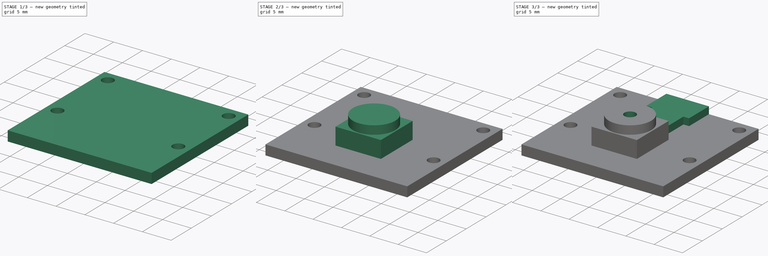
[diagram: build sequence overview — one tinted view per stage of 3, left to right]
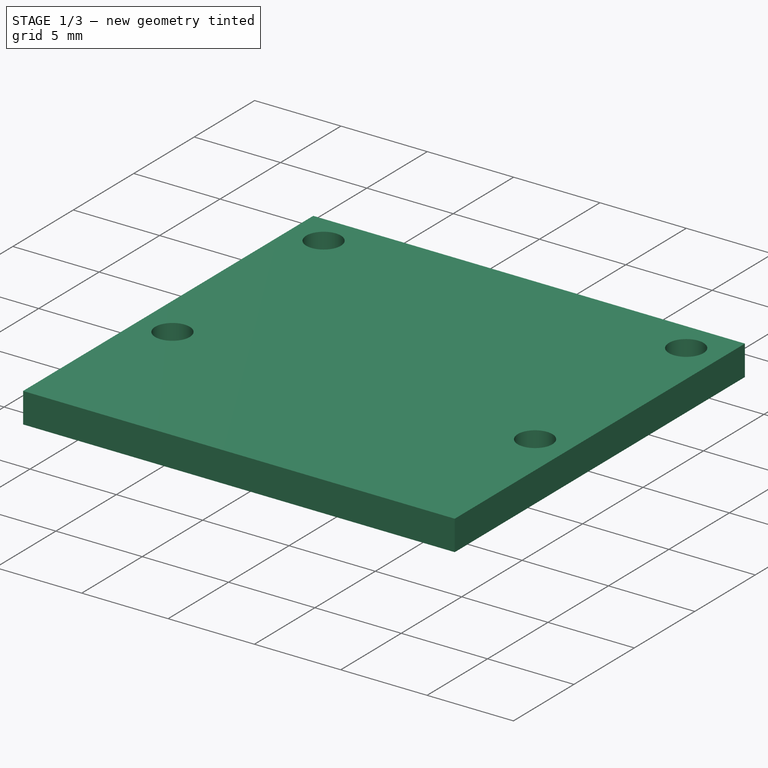
[diagram: stage 1 of 3 — iso view after this stage's code; geometry added in this stage tinted green]
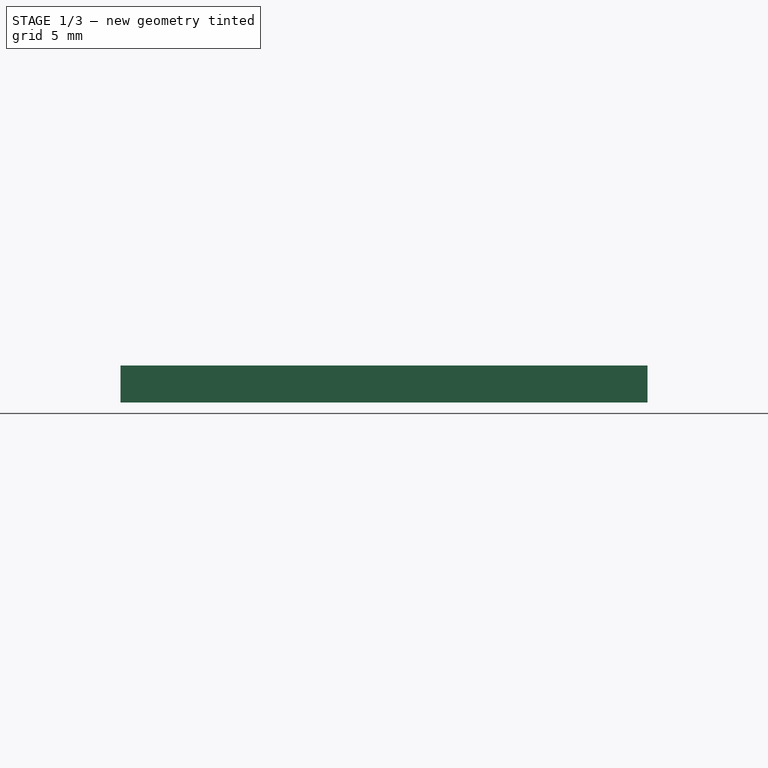
[diagram: stage 1 of 3 — front view after this stage's code; geometry added in this stage tinted green]
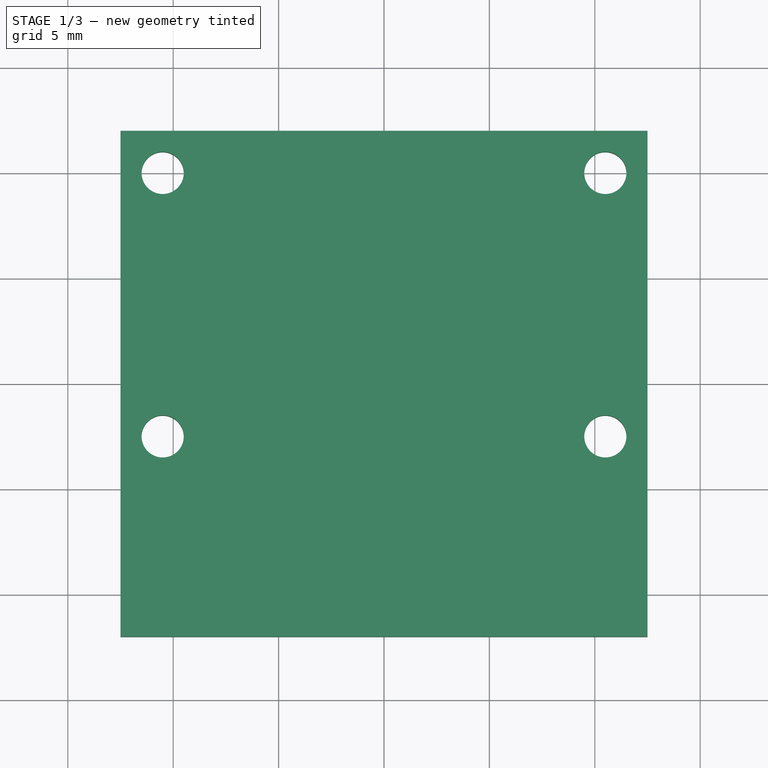
[diagram: stage 1 of 3 — top view after this stage's code; geometry added in this stage tinted green]
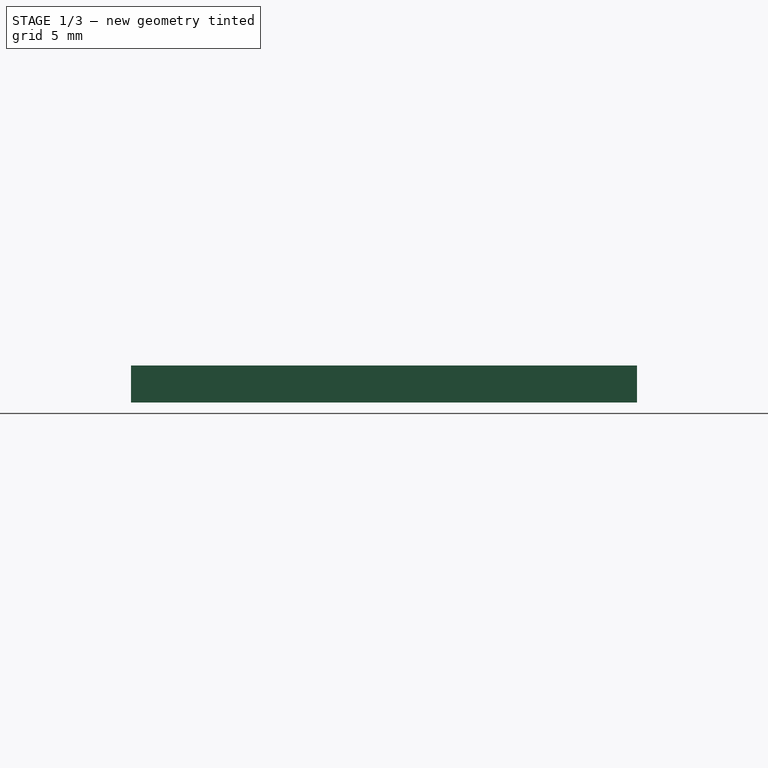
[diagram: stage 1 of 3 — right view after this stage's code; geometry added in this stage tinted green]
FCSTD DOCUMENT  (FreeCAD 1.0R39109 (Git))
Label: picam
License: All rights reserved
LicenseURL: http://en.wikipedia.org/wiki/All_rights_reserved
objects: Sketcher::SketchObject×6, PartDesign::Pad×4, PartDesign::Pocket×2, PartDesign::Body×1
note: 31 computed .brp shape members not serialized (recipe doc carries the construction recipe); baked Part::Feature solids carry a one-line shape summary decoded from their .brp

FEATURE [Sketcher::SketchObject] Sketch
  ArcFitTolerance = 1e-06
  AttachmentSupport = -> [XY_Plane]
  FullyConstrained = true
  MakeInternals = false
  MapMode = 5
  sketch-geometry (5):
    g0: LineSegment StartX=-12.5 StartY=12 StartZ=0 EndX=-12.5 EndY=-12 EndZ=0
    g1: LineSegment StartX=-12.5 StartY=-12 StartZ=0 EndX=12.5 EndY=-12 EndZ=0
    g2: LineSegment StartX=12.5 StartY=-12 StartZ=0 EndX=12.5 EndY=12 EndZ=0
    g3: LineSegment StartX=12.5 StartY=12 StartZ=0 EndX=-12.5 EndY=12 EndZ=0
    g4: GeomPoint [constr] X=0 Y=0 Z=0
  constraints (12):
    c: Coincident(g0,g1)
    c: Coincident(g1,g2)
    c: Coincident(g2,g3)
    c: Coincident(g3,g0)
    c: Vertical(g0)
    c: Vertical(g2)
    c: Horizontal(g1)
    c: Horizontal(g3)
    c: Symmetric(g2,g0,g4)
    c: Coincident(g4,g-1)
    c: DistanceX(g3,g3) = 25
    c: DistanceY(g2,g2) = 24
FEATURE [PartDesign::Pad] Pad  label="PCBPad"
  Direction = (0,0,1)
  Length = 1.75
  Length2 = 10
  Profile = -> Sketch
  ReferenceAxis = -> Sketch [N_Axis]
  Refine = true
  Suppressed = false
  Type = 0
FEATURE [Sketcher::SketchObject] Sketch001
  ArcFitTolerance = 1e-06
  AttachmentSupport = -> [Pad]
  ExternalGeometry = -> [Pad]
  FullyConstrained = true
  MakeInternals = false
  MapMode = 5
  Placement = pos=(0,0,1.75) rot=(0,0,1;0rad)
  sketch-geometry (4):
    g0: Circle CenterX=-10.5 CenterY=10 CenterZ=0 NormalX=0 NormalY=0 NormalZ=1 AngleXU=0 Radius=1
    g1: Circle CenterX=10.5 CenterY=10 CenterZ=0 NormalX=0 NormalY=0 NormalZ=1 AngleXU=0 Radius=1
    g2: Circle CenterX=-10.5 CenterY=-2.5 CenterZ=0 NormalX=0 NormalY=0 NormalZ=1 AngleXU=0 Radius=1
    g3: Circle CenterX=10.5 CenterY=-2.5 CenterZ=0 NormalX=0 NormalY=0 NormalZ=1 AngleXU=0 Radius=1
  constraints (11):
    c: Equal(g3,g2)
    c: Equal(g2,g0)
    c: Equal(g0,g1)
    c: Radius(g3) = 1
    c: Symmetric(g3,g2,g-2)
    c: Vertical(g3,g1)
    c: Vertical(g2,g0)
    c: Horizontal(g0,g1)
    c: DistanceY(g-3,g3) = 9.5
    c: DistanceY(g1,g-4) = 2
    c: DistanceX(g0,g1) = 21
FEATURE [PartDesign::Pocket] Pocket  label="ScrewPockets"
  BaseFeature = -> Pad
  Direction = (0,0,-1)
  Length = 1
  Length2 = 5
  Profile = -> Sketch001
  ReferenceAxis = -> Sketch001 [N_Axis]
  Refine = true
  Suppressed = false
  Type = 2
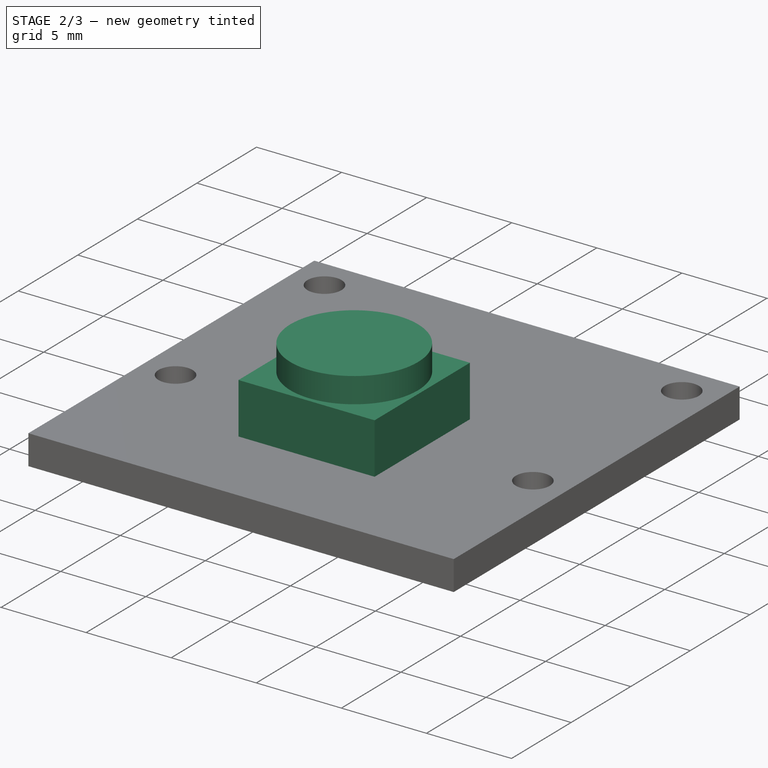
[diagram: stage 2 of 3 — iso view after this stage's code; geometry added in this stage tinted green]
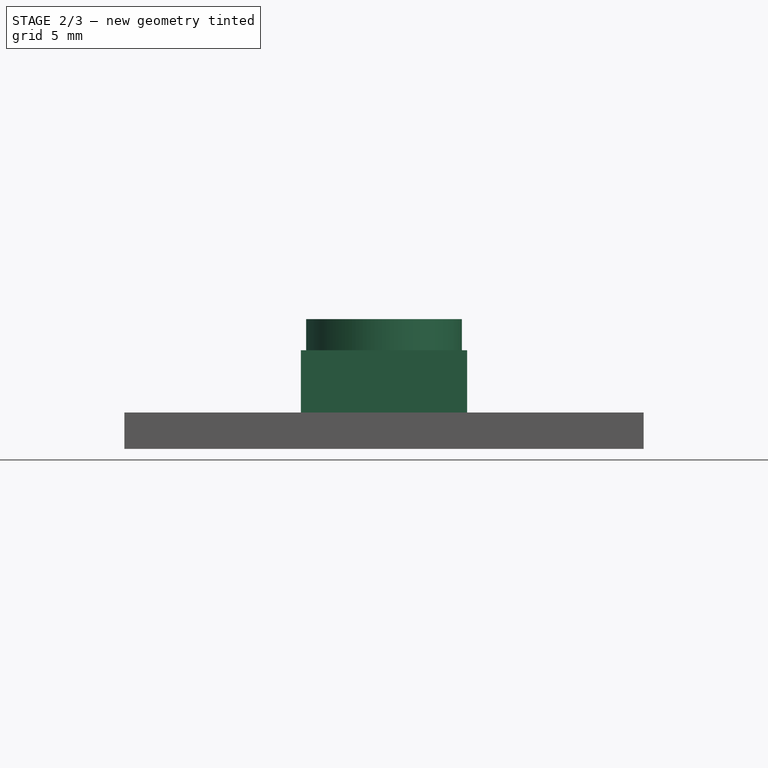
[diagram: stage 2 of 3 — front view after this stage's code; geometry added in this stage tinted green]
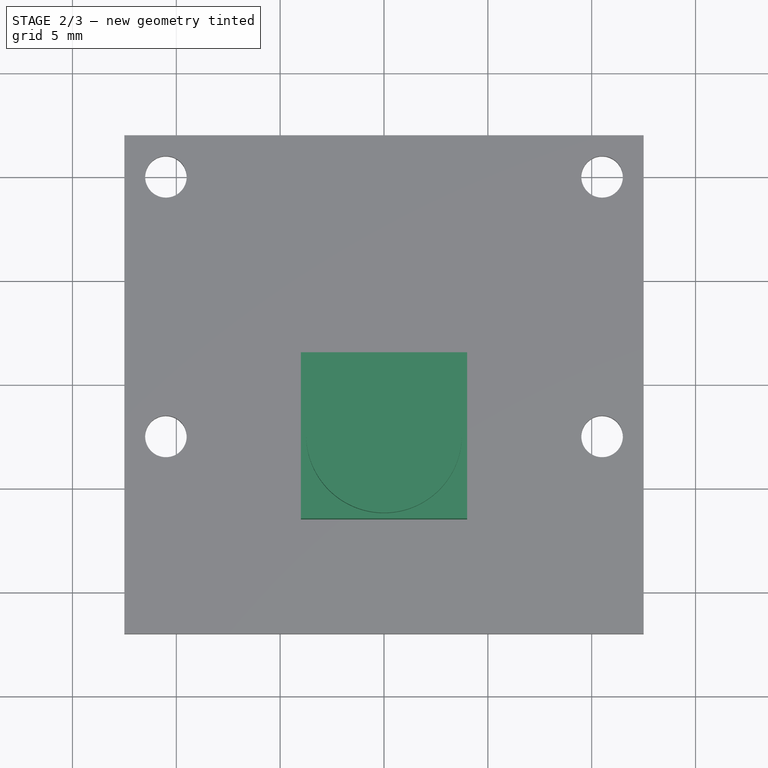
[diagram: stage 2 of 3 — top view after this stage's code; geometry added in this stage tinted green]
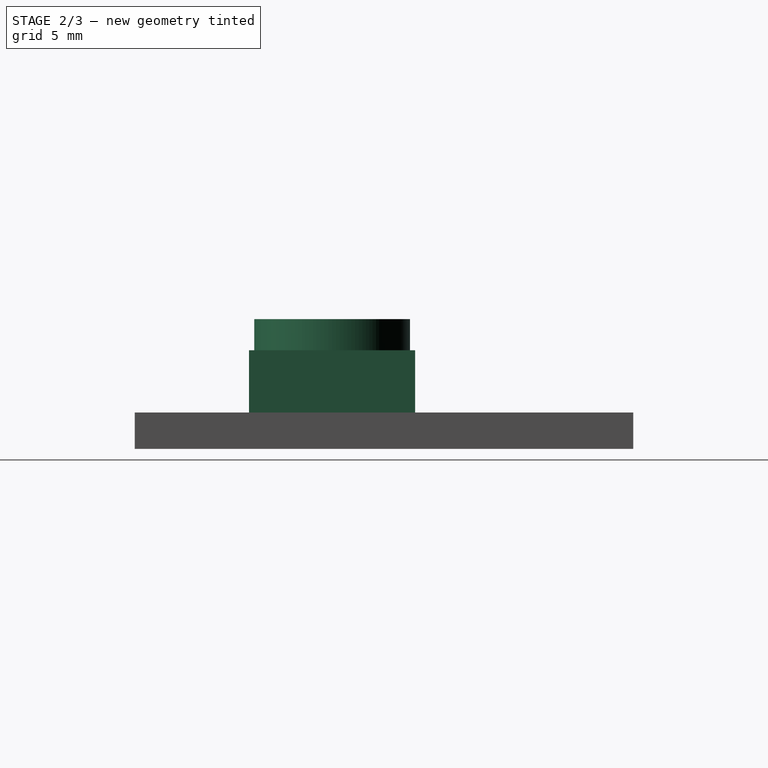
[diagram: stage 2 of 3 — right view after this stage's code; geometry added in this stage tinted green]
FEATURE [Sketcher::SketchObject] Sketch002
  ArcFitTolerance = 1e-06
  AttachmentSupport = -> [Pocket]
  ExternalGeometry = -> [Pocket]
  FullyConstrained = true
  MakeInternals = false
  MapMode = 5
  Placement = pos=(0,0,1.75) rot=(0,0,1;0rad)
  sketch-geometry (5):
    g0: LineSegment StartX=-4 StartY=1.5 StartZ=0 EndX=-4 EndY=-6.5 EndZ=0
    g1: LineSegment StartX=-4 StartY=-6.5 StartZ=0 EndX=4 EndY=-6.5 EndZ=0
    g2: LineSegment StartX=4 StartY=-6.5 StartZ=0 EndX=4 EndY=1.5 EndZ=0
    g3: LineSegment StartX=4 StartY=1.5 StartZ=0 EndX=-4 EndY=1.5 EndZ=0
    g4: GeomPoint [constr] X=0 Y=-2.5 Z=0
  constraints (13):
    c: Coincident(g0,g1)
    c: Coincident(g1,g2)
    c: Coincident(g2,g3)
    c: Coincident(g3,g0)
    c: Vertical(g0)
    c: Vertical(g2)
    c: Horizontal(g1)
    c: Horizontal(g3)
    c: Symmetric(g2,g0,g4)
    c: Equal(g3,g2)
    c: DistanceY(g2,g2) = 8
    c: PointOnObject(g4,g-2)
    c: DistanceY(g-3,g1) = 5.5
FEATURE [PartDesign::Pad] Pad001  label="CamPad"
  BaseFeature = -> Pocket
  Direction = (0,0,1)
  Length = 3
  Length2 = 10
  Profile = -> Sketch002
  ReferenceAxis = -> Sketch002 [N_Axis]
  Refine = true
  Suppressed = false
  Type = 0
FEATURE [Sketcher::SketchObject] Sketch003
  ArcFitTolerance = 1e-06
  AttachmentSupport = -> [Pad001]
  ExternalGeometry = -> [Pad001]
  FullyConstrained = true
  MakeInternals = false
  MapMode = 5
  Placement = pos=(0,0,4.75) rot=(0,0,1;0rad)
  sketch-geometry (2):
    g0: GeomPoint X=4 Y=-2.5 Z=0
    g1: Circle CenterX=0 CenterY=-2.5 CenterZ=0 NormalX=0 NormalY=0 NormalZ=1 AngleXU=0 Radius=3.75
  constraints (4):
    c: Symmetric(g-3,g-3,g0)
    c: PointOnObject(g1,g-2)
    c: Horizontal(g1,g0)
    c: Radius(g1) = 3.75
FEATURE [PartDesign::Pad] Pad002  label="Camp2Pad"
  BaseFeature = -> Pad001
  Direction = (0,0,1)
  Length = 1.5
  Length2 = 10
  Profile = -> Sketch003
  ReferenceAxis = -> Sketch003 [N_Axis]
  Refine = true
  Suppressed = false
  Type = 0
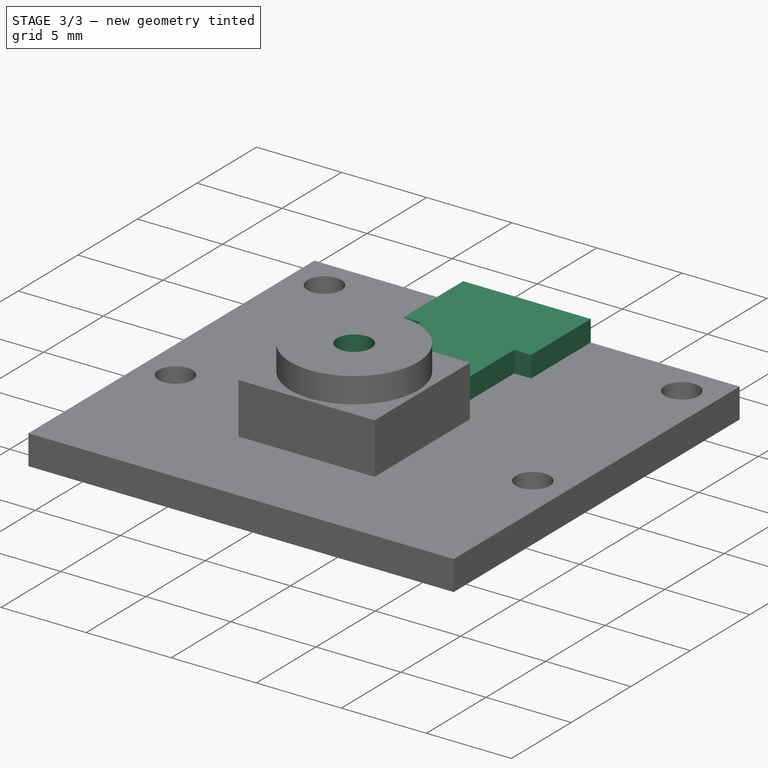
[diagram: stage 3 of 3 — iso view after this stage's code; geometry added in this stage tinted green]
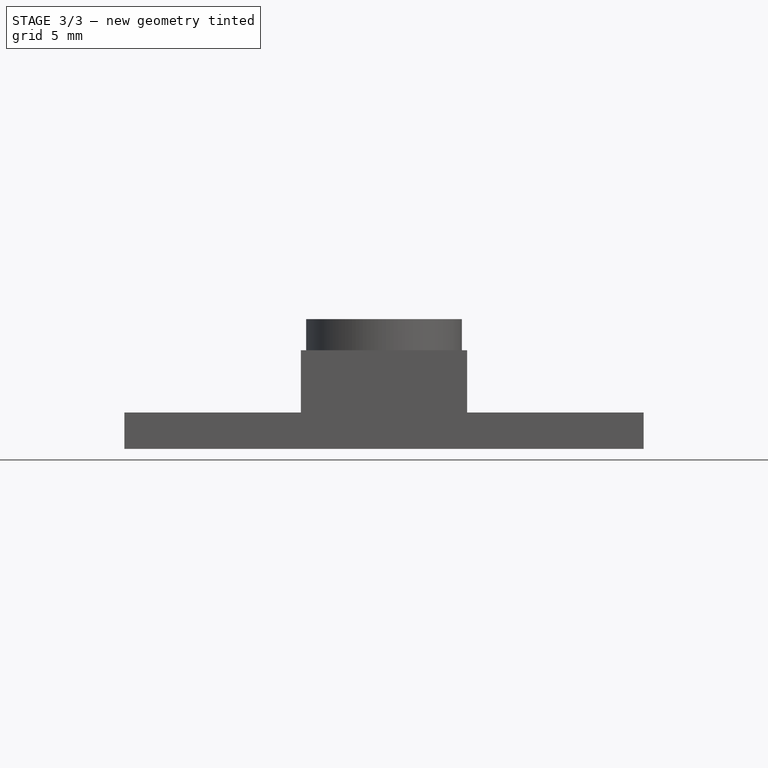
[diagram: stage 3 of 3 — front view after this stage's code; geometry added in this stage tinted green]
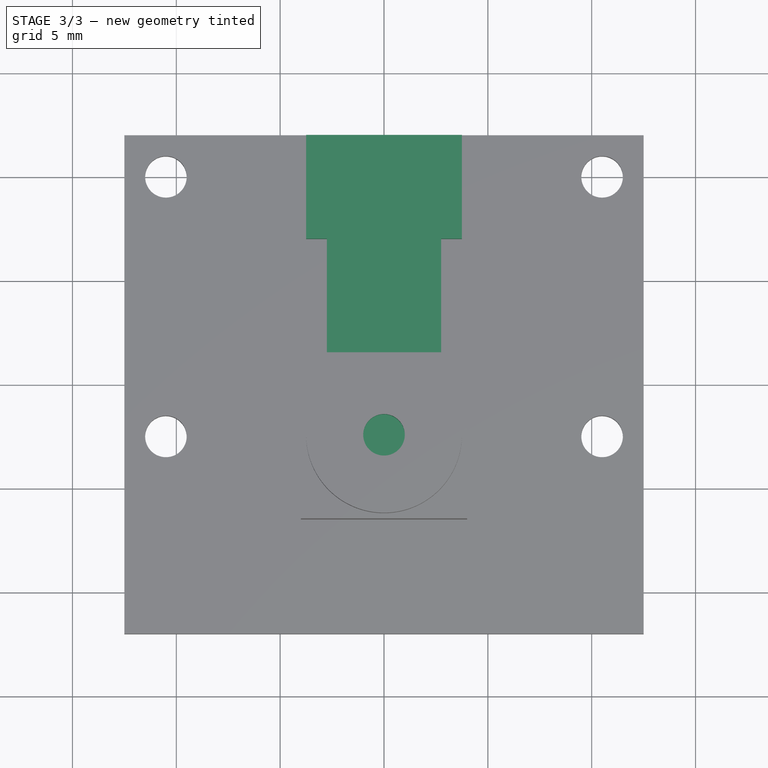
[diagram: stage 3 of 3 — top view after this stage's code; geometry added in this stage tinted green]
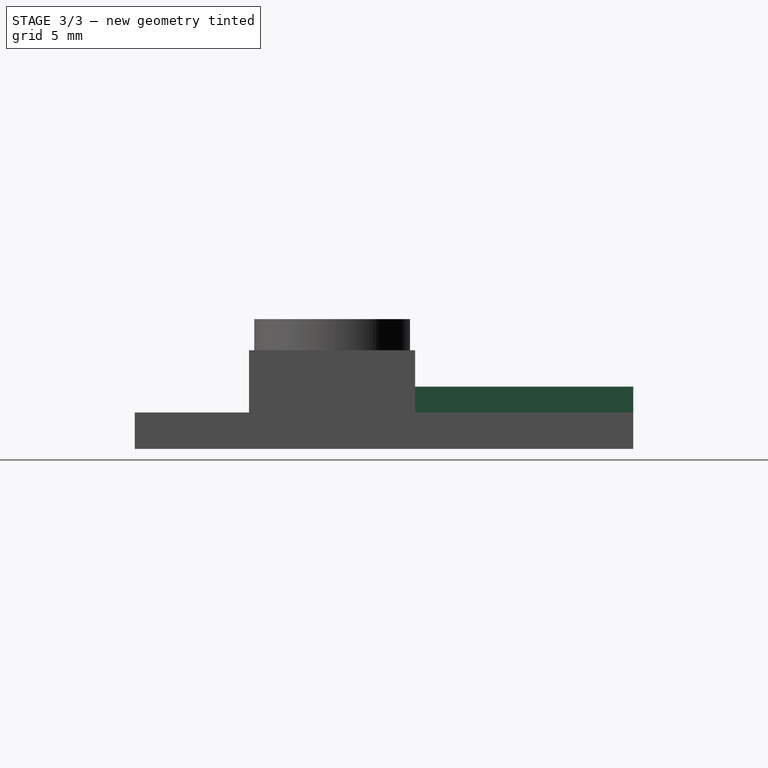
[diagram: stage 3 of 3 — right view after this stage's code; geometry added in this stage tinted green]
FEATURE [Sketcher::SketchObject] Sketch004
  ArcFitTolerance = 1e-06
  AttachmentSupport = -> [Pad002]
  ExternalGeometry = -> [Pad002]
  FullyConstrained = true
  MakeInternals = false
  MapMode = 5
  Placement = pos=(0,0,6.25) rot=(0,0,1;0rad)
  sketch-geometry (1):
    g0: Circle CenterX=0 CenterY=-2.5 CenterZ=0 NormalX=0 NormalY=0 NormalZ=1 AngleXU=0 Radius=1
  constraints (2):
    c: Coincident(g0,g-3)
    c: Radius(g0) = 1
FEATURE [PartDesign::Pocket] Pocket001  label="LensPocket"
  BaseFeature = -> Pad002
  Direction = (0,0,-1)
  Length = 1
  Length2 = 5
  Profile = -> Sketch004
  ReferenceAxis = -> Sketch004 [N_Axis]
  Refine = true
  Suppressed = false
  Type = 0
FEATURE [Sketcher::SketchObject] Sketch005
  ArcFitTolerance = 1e-06
  AttachmentSupport = -> [Pocket001]
  ExternalGeometry = -> [Pocket001]
  FullyConstrained = true
  MakeInternals = false
  MapMode = 5
  Placement = pos=(0,0,1.75) rot=(0,0,1;0rad)
  sketch-geometry (11):
    g0: LineSegment StartX=-3.75 StartY=12 StartZ=0 EndX=-3.75 EndY=7 EndZ=0
    g1: LineSegment [constr] StartX=-3.75 StartY=7 StartZ=0 EndX=3.75 EndY=7 EndZ=0
    g2: LineSegment StartX=3.75 StartY=7 StartZ=0 EndX=3.75 EndY=12 EndZ=0
    g3: LineSegment StartX=3.75 StartY=12 StartZ=0 EndX=-3.75 EndY=12 EndZ=0
    g4: GeomPoint [constr] X=0 Y=9.5 Z=0
    g5: LineSegment StartX=-3.75 StartY=7 StartZ=0 EndX=-2.75 EndY=7 EndZ=0
    g6: LineSegment StartX=-2.75 StartY=7 StartZ=0 EndX=-2.75 EndY=1.5 EndZ=0
    g7: LineSegment StartX=-2.75 StartY=1.5 StartZ=0 EndX=2.75 EndY=1.5 EndZ=0
    g8: LineSegment StartX=2.75 StartY=1.5 StartZ=0 EndX=2.75 EndY=7 EndZ=0
    g9: LineSegment StartX=2.75 StartY=7 StartZ=0 EndX=3.75 EndY=7 EndZ=0
    g10: GeomPoint X=0 Y=1.5 Z=0
  constraints (28):
    c: Coincident(g0,g1)
    c: Coincident(g1,g2)
    c: Coincident(g2,g3)
    c: Coincident(g3,g0)
    c: Vertical(g0)
    c: Vertical(g2)
    c: Horizontal(g1)
    c: Horizontal(g3)
    c: Symmetric(g2,g0,g4)
    c: PointOnObject(g4,g-2)
    c: Coincident(g0,g5)
    c: PointOnObject(g5,g1)
    c: Coincident(g5,g6)
    c: Vertical(g6)
    c: Coincident(g6,g7)
    c: Coincident(g7,g8)
    c: PointOnObject(g8,g1)
    c: Coincident(g8,g9)
    c: Coincident(g9,g1)
    c: Vertical(g8)
    c: Horizontal(g7)
    c: PointOnObject(g7,g-3)
    c: DistanceY(g2,g2) = 5
    c: DistanceX(g3,g3) = 7.5
    c: PointOnObject(g2,g-4)
    c: DistanceX(g7,g7) = 5.5
    c: Symmetric(g7,g7,g10)
    c: PointOnObject(g10,g-2)
FEATURE [PartDesign::Pad] Pad003  label="ConnectionsPocket"
  BaseFeature = -> Pocket001
  Direction = (0,0,1)
  Length = 1.25
  Length2 = 10
  Profile = -> Sketch005
  ReferenceAxis = -> Sketch005 [N_Axis]
  Refine = true
  Suppressed = false
  Type = 0
FEATURE [PartDesign::Body] Body  label="picam"
  AllowCompound = false
  Group = -> [Sketch,Pad,Sketch001,Pocket,Sketch002,Pad001,Sketch003,Pad002,Sketch004,Pocket001,Sketch005,Pad003]
  Origin = -> Origin
  Tip = -> Pad003
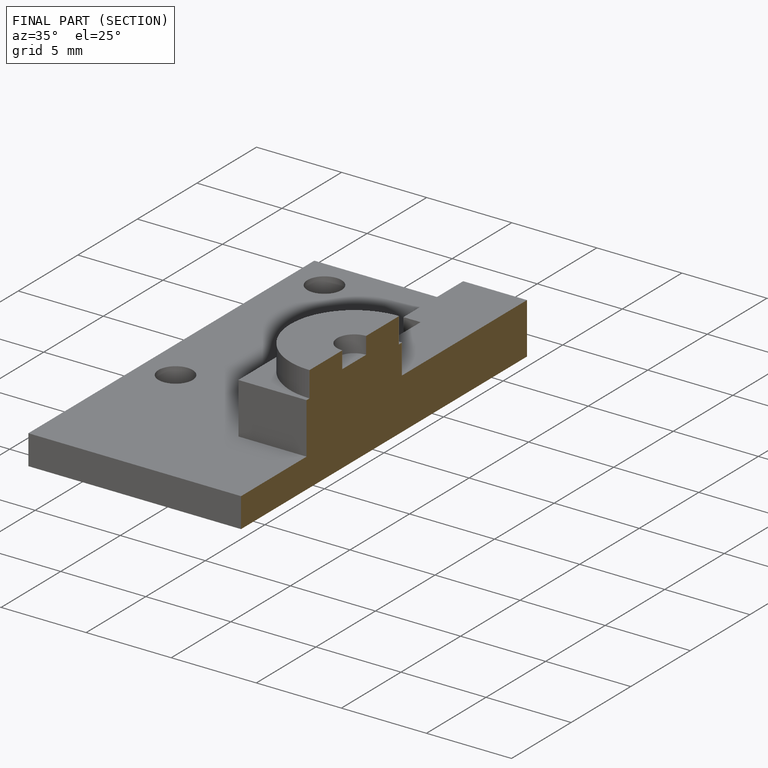
[diagram: finished part — half-section view (interior)]
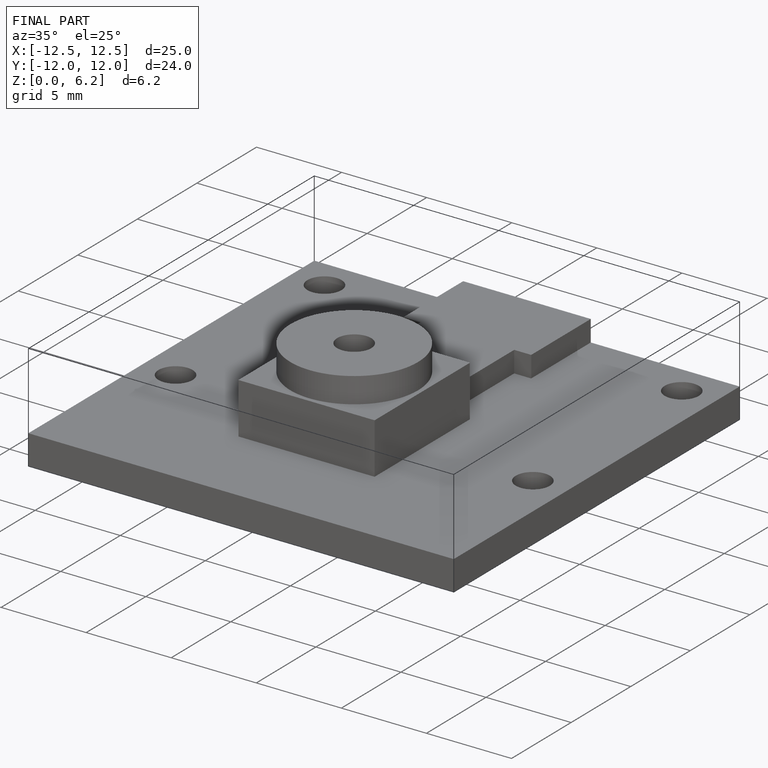
[diagram: finished part — iso view with bounding-box wireframe]
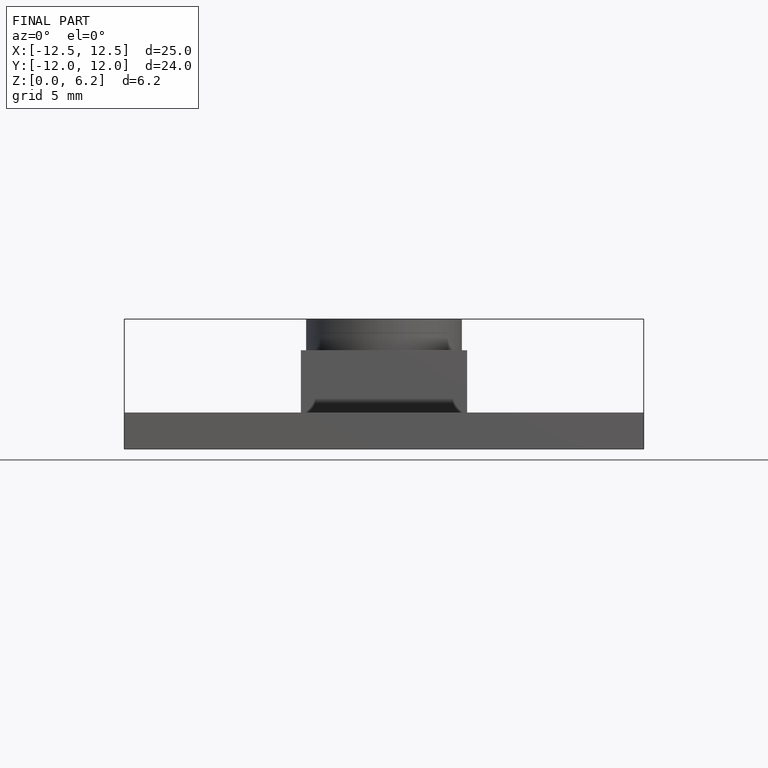
[diagram: finished part — front view with bounding-box wireframe]
